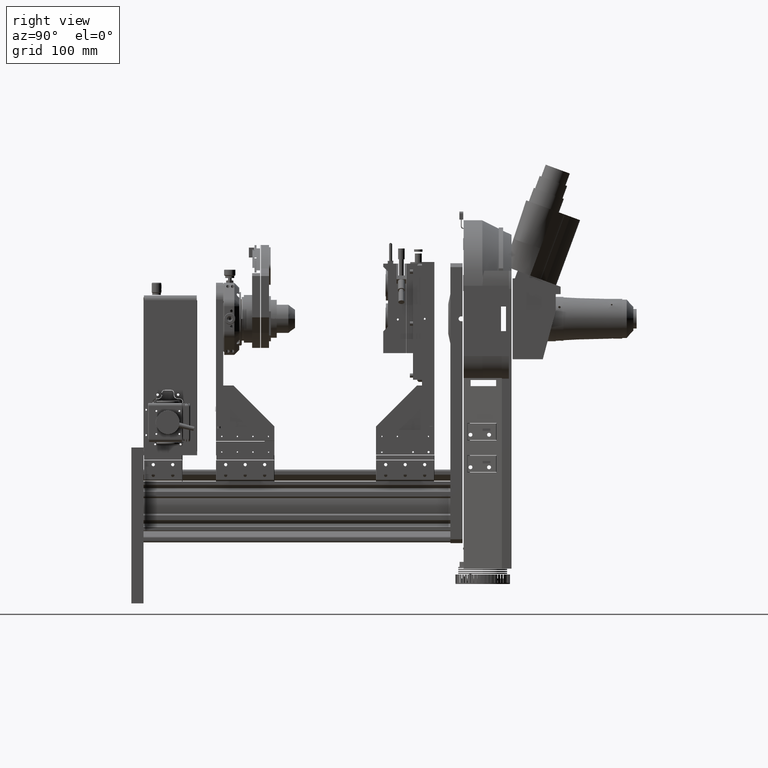
[diagram: clean part render]
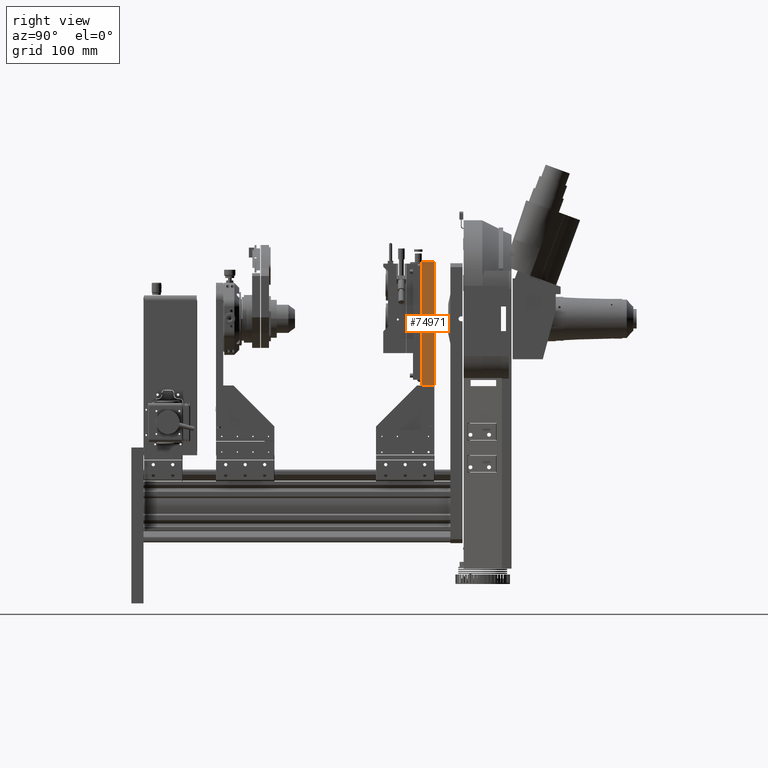
[diagram: same view with one face highlighted and labeled with its STEP entity id]
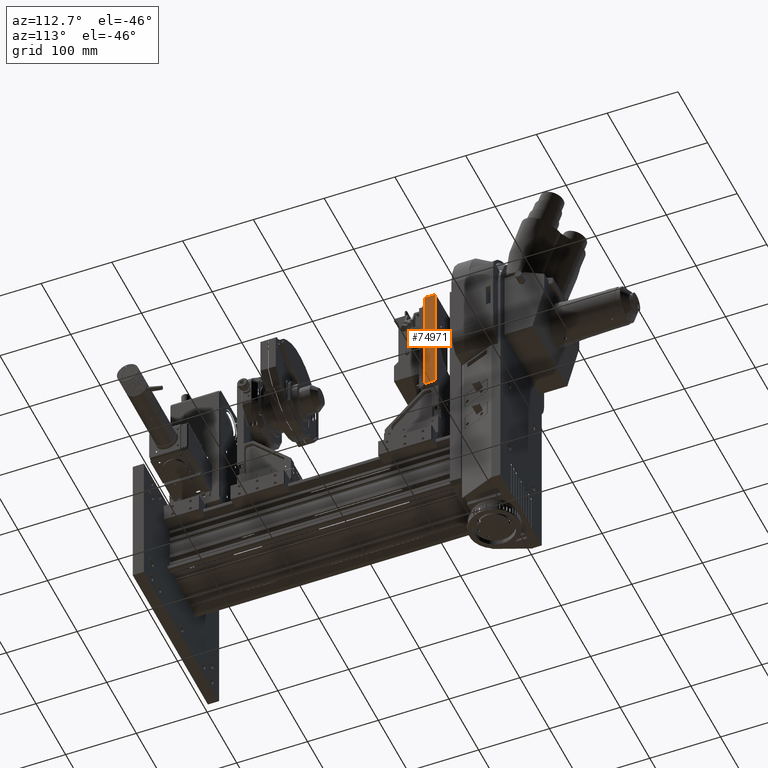
[diagram: same view with one face highlighted and labeled with its STEP entity id]
A machine part, right view. The second image highlights one B-rep face of the part: STEP entity #74971.
A second angle (auxiliary view) of the same face is appended — the face is thin or edge-on in the first view.
In plain terms, the highlighted planar face has unit normal (-1, -0, 0).
Its self-contained STEP definition (entity closure, byte-faithful):
#247 = LINE ( 'NONE', #66129, #34989 ) ;
#673 = AXIS2_PLACEMENT_3D ( 'NONE', #119723, #49130, #131517 ) ;
#3503 = VECTOR ( 'NONE', #14236, 1000.000000000000000 ) ;
#10783 = ORIENTED_EDGE ( 'NONE', *, *, #25344, .F. ) ;
#12382 = LINE ( 'NONE', #125704, #133853 ) ;
#14235 = CIRCLE ( 'NONE', #63133, 1.649999999999984800 ) ;
#14236 = DIRECTION ( 'NONE',  ( 5.828670879282978200E-015, -1.000000000000000000, -3.922376330705766600E-018 ) ) ;
#19353 = DIRECTION ( 'NONE',  ( -1.148649291379129400E-014, 3.922376330638421400E-018, -1.000000000000000000 ) ) ;
#22857 = EDGE_CURVE ( 'NONE', #94536, #72399, #127059, .T. ) ;
#25344 = EDGE_CURVE ( 'NONE', #37532, #67654, #144224, .T. ) ;
#26410 = CARTESIAN_POINT ( 'NONE',  ( 74.07901470159144700, -20.29090327093544800, 543.9686022211722000 ) ) ;
#26722 = ORIENTED_EDGE ( 'NONE', *, *, #22857, .F. ) ;
#29703 = DIRECTION ( 'NONE',  ( 5.828670879282978200E-015, -1.000000000000000000, -3.922376330705766600E-018 ) ) ;
#31930 = EDGE_CURVE ( 'NONE', #59109, #67072, #97161, .T. ) ;
#32923 = EDGE_LOOP ( 'NONE', ( #10783, #78525 ) ) ;
#34989 = VECTOR ( 'NONE', #19353, 1000.000000000000000 ) ;
#36422 = CARTESIAN_POINT ( 'NONE',  ( 74.07901470159059400, -16.68410327093548100, 469.9276022211720900 ) ) ;
#37532 = VERTEX_POINT ( 'NONE', #45822 ) ;
#40955 = CARTESIAN_POINT ( 'NONE',  ( 74.07901470158950000, -4.034903270935509500, 382.9326022211721500 ) ) ;
#43308 = EDGE_CURVE ( 'NONE', #59109, #94536, #247, .T. ) ;
#43815 = AXIS2_PLACEMENT_3D ( 'NONE', #36422, #118853, #48287 ) ;
#45822 = CARTESIAN_POINT ( 'NONE',  ( 74.07901470159058000, -16.68410327093548100, 468.2776022211721200 ) ) ;
#48287 = DIRECTION ( 'NONE',  ( -8.410780489584597400E-015, 0.0000000000000000000, -1.000000000000000000 ) ) ;
#49130 = DIRECTION ( 'NONE',  ( -1.000000000000000000, -5.828670879282935600E-015, 1.148649291379129400E-014 ) ) ;
#53888 = FACE_OUTER_BOUND ( 'NONE', #83452, .T. ) ;
#54397 = DIRECTION ( 'NONE',  ( 1.000000000000000000, 5.828670879282936400E-015, -1.135722565857058800E-014 ) ) ;
#59109 = VERTEX_POINT ( 'NONE', #132726 ) ;
#63133 = AXIS2_PLACEMENT_3D ( 'NONE', #125014, #54397, #136760 ) ;
#64295 = VECTOR ( 'NONE', #29703, 1000.000000000000000 ) ;
#66129 = CARTESIAN_POINT ( 'NONE',  ( 74.07901470159134800, -4.034903270935398500, 543.9686022211722000 ) ) ;
#67072 = VERTEX_POINT ( 'NONE', #26410 ) ;
#67654 = VERTEX_POINT ( 'NONE', #98574 ) ;
#72272 = PLANE ( 'NONE',  #673 ) ;
#72399 = VERTEX_POINT ( 'NONE', #140522 ) ;
#74971 = ADVANCED_FACE ( 'NONE', ( #144187, #53888 ), #72272, .F. ) ;
#77171 = EDGE_CURVE ( 'NONE', #67654, #37532, #14235, .T. ) ;
#78525 = ORIENTED_EDGE ( 'NONE', *, *, #77171, .F. ) ;
#83452 = EDGE_LOOP ( 'NONE', ( #104780, #26722, #114270, #85823 ) ) ;
#85823 = ORIENTED_EDGE ( 'NONE', *, *, #31930, .T. ) ;
#94536 = VERTEX_POINT ( 'NONE', #100736 ) ;
#97161 = LINE ( 'NONE', #131519, #3503 ) ;
#98574 = CARTESIAN_POINT ( 'NONE',  ( 74.07901470159060900, -16.68410327093548100, 471.5776022211720700 ) ) ;
#100736 = CARTESIAN_POINT ( 'NONE',  ( 74.07901470158950000, -4.034903270935509500, 382.9326022211721500 ) ) ;
#104780 = ORIENTED_EDGE ( 'NONE', *, *, #149770, .F. ) ;
#114270 = ORIENTED_EDGE ( 'NONE', *, *, #43308, .F. ) ;
#118853 = DIRECTION ( 'NONE',  ( 1.000000000000000000, 5.828670879282936400E-015, -1.135722565857058800E-014 ) ) ;
#119723 = CARTESIAN_POINT ( 'NONE',  ( 74.07901470159134800, -4.034903270935398500, 543.9686022211722000 ) ) ;
#125014 = CARTESIAN_POINT ( 'NONE',  ( 74.07901470159059400, -16.68410327093548100, 469.9276022211720900 ) ) ;
#125704 = CARTESIAN_POINT ( 'NONE',  ( 74.07901470159144700, -20.29090327093544800, 543.9686022211722000 ) ) ;
#127059 = LINE ( 'NONE', #40955, #64295 ) ;
#131517 = DIRECTION ( 'NONE',  ( 1.148649291379129400E-014, -3.922376330638421400E-018, 1.000000000000000000 ) ) ;
#131519 = CARTESIAN_POINT ( 'NONE',  ( 74.07901470159134800, -4.034903270935398500, 543.9686022211722000 ) ) ;
#132726 = CARTESIAN_POINT ( 'NONE',  ( 74.07901470159134800, -4.034903270935398500, 543.9686022211722000 ) ) ;
#133853 = VECTOR ( 'NONE', #149397, 1000.000000000000000 ) ;
#136760 = DIRECTION ( 'NONE',  ( -8.410780489584597400E-015, 0.0000000000000000000, -1.000000000000000000 ) ) ;
#140522 = CARTESIAN_POINT ( 'NONE',  ( 74.07901470158958500, -20.29090327093550200, 382.9326022211722000 ) ) ;
#144187 = FACE_BOUND ( 'NONE', #32923, .T. ) ;
#144224 = CIRCLE ( 'NONE', #43815, 1.649999999999984800 ) ;
#149397 = DIRECTION ( 'NONE',  ( 1.148649291379129400E-014, -3.922376330638421400E-018, 1.000000000000000000 ) ) ;
#149770 = EDGE_CURVE ( 'NONE', #72399, #67072, #12382, .T. ) ;